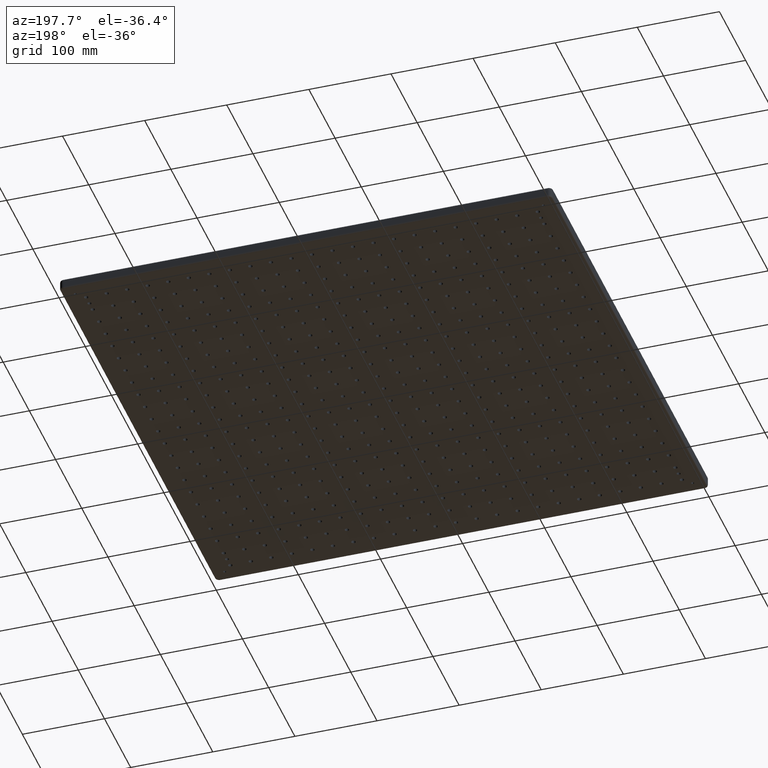
[diagram: clean part render]
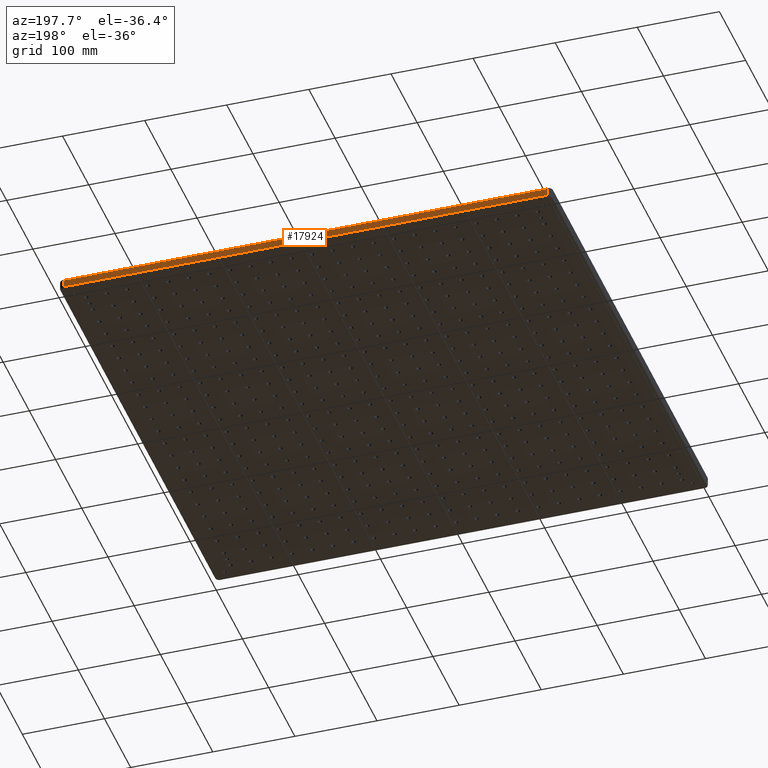
[diagram: same view with one face highlighted and labeled with its STEP entity id]
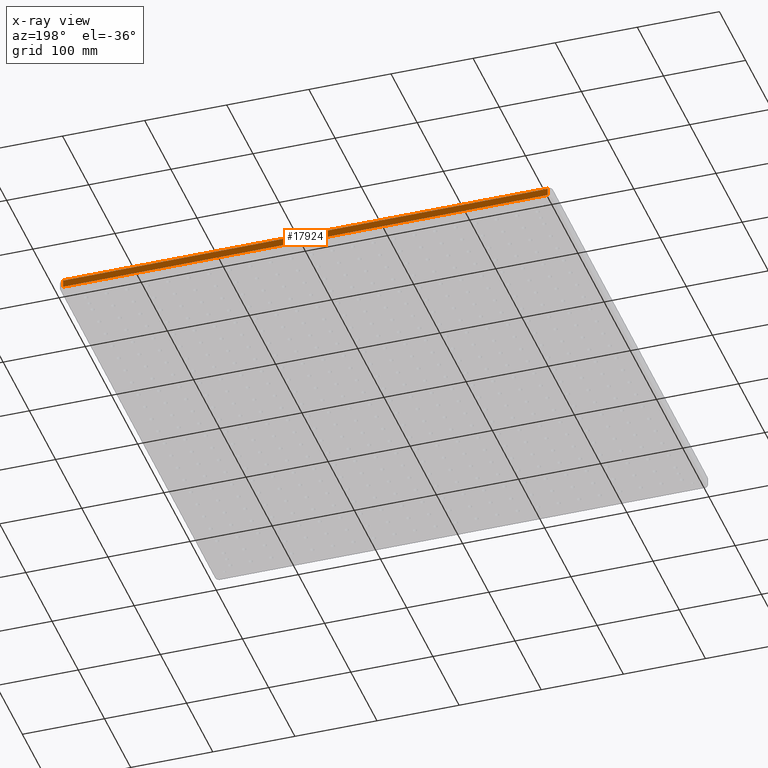
[diagram: x-ray of the same camera — body ghosted, the highlighted face saturated]
A machine part, auxiliary view. The second image highlights one B-rep face of the part: STEP entity #17924.
The next image is the same camera in x-ray: the body ghosted, the highlighted face saturated — about 0% of this face is hidden behind the body in this view.
In plain terms, the highlighted planar face has unit normal (0, 1, 0).
Its self-contained STEP definition (entity closure, byte-faithful):
#1692 = EDGE_CURVE ( 'NONE', #24702, #30446, #21855, .T. ) ;
#2671 = LINE ( 'NONE', #5229, #13437 ) ;
#3033 = VERTEX_POINT ( 'NONE', #38526 ) ;
#3609 = DIRECTION ( 'NONE',  ( 0.0000000000000000000, -0.0000000000000000000, 1.000000000000000000 ) ) ;
#4140 = CARTESIAN_POINT ( 'NONE',  ( 4.999999999999998200, 600.0000000000000000, -13.00000000000000000 ) ) ;
#4829 = DIRECTION ( 'NONE',  ( -0.0000000000000000000, 0.0000000000000000000, -1.000000000000000000 ) ) ;
#5229 = CARTESIAN_POINT ( 'NONE',  ( 595.0000000000000000, 600.0000000000000000, -13.00000000000000000 ) ) ;
#7307 = CARTESIAN_POINT ( 'NONE',  ( 0.0000000000000000000, 600.0000000000000000, -11.00000000000000000 ) ) ;
#8609 = CARTESIAN_POINT ( 'NONE',  ( 595.0000000000000000, 600.0000000000000000, -11.00000000000000000 ) ) ;
#10519 = ORIENTED_EDGE ( 'NONE', *, *, #23310, .T. ) ;
#13050 = PLANE ( 'NONE',  #39441 ) ;
#13346 = VECTOR ( 'NONE', #16517, 1000.000000000000000 ) ;
#13437 = VECTOR ( 'NONE', #4829, 1000.000000000000000 ) ;
#14679 = ORIENTED_EDGE ( 'NONE', *, *, #35951, .T. ) ;
#15294 = ORIENTED_EDGE ( 'NONE', *, *, #21091, .T. ) ;
#16062 = EDGE_LOOP ( 'NONE', ( #10519, #21758, #14679, #15294 ) ) ;
#16517 = DIRECTION ( 'NONE',  ( 0.0000000000000000000, -0.0000000000000000000, 1.000000000000000000 ) ) ;
#17924 = ADVANCED_FACE ( 'NONE', ( #34379 ), #13050, .T. ) ;
#18360 = CARTESIAN_POINT ( 'NONE',  ( 4.999999999999998200, 600.0000000000000000, -11.00000000000000000 ) ) ;
#21091 = EDGE_CURVE ( 'NONE', #3033, #35147, #27953, .T. ) ;
#21758 = ORIENTED_EDGE ( 'NONE', *, *, #1692, .T. ) ;
#21855 = LINE ( 'NONE', #7307, #29690 ) ;
#22248 = CARTESIAN_POINT ( 'NONE',  ( 595.0000000000000000, 600.0000000000000000, -2.000000000000000000 ) ) ;
#22298 = DIRECTION ( 'NONE',  ( 0.0000000000000000000, 1.000000000000000000, 0.0000000000000000000 ) ) ;
#23310 = EDGE_CURVE ( 'NONE', #35147, #24702, #2671, .T. ) ;
#24702 = VERTEX_POINT ( 'NONE', #8609 ) ;
#27953 = LINE ( 'NONE', #35775, #39354 ) ;
#29690 = VECTOR ( 'NONE', #32625, 1000.000000000000000 ) ;
#30073 = LINE ( 'NONE', #4140, #13346 ) ;
#30446 = VERTEX_POINT ( 'NONE', #18360 ) ;
#32625 = DIRECTION ( 'NONE',  ( -1.000000000000000000, 0.0000000000000000000, 0.0000000000000000000 ) ) ;
#34379 = FACE_OUTER_BOUND ( 'NONE', #16062, .T. ) ;
#35147 = VERTEX_POINT ( 'NONE', #22248 ) ;
#35775 = CARTESIAN_POINT ( 'NONE',  ( 595.0000000000000000, 600.0000000000000000, -2.000000000000000000 ) ) ;
#35951 = EDGE_CURVE ( 'NONE', #30446, #3033, #30073, .T. ) ;
#37830 = CARTESIAN_POINT ( 'NONE',  ( 0.0000000000000000000, 600.0000000000000000, -13.00000000000000000 ) ) ;
#38526 = CARTESIAN_POINT ( 'NONE',  ( 4.999999999999998200, 600.0000000000000000, -2.000000000000000000 ) ) ;
#39354 = VECTOR ( 'NONE', #39645, 1000.000000000000000 ) ;
#39441 = AXIS2_PLACEMENT_3D ( 'NONE', #37830, #22298, #3609 ) ;
#39645 = DIRECTION ( 'NONE',  ( 1.000000000000000000, -0.0000000000000000000, 0.0000000000000000000 ) ) ;